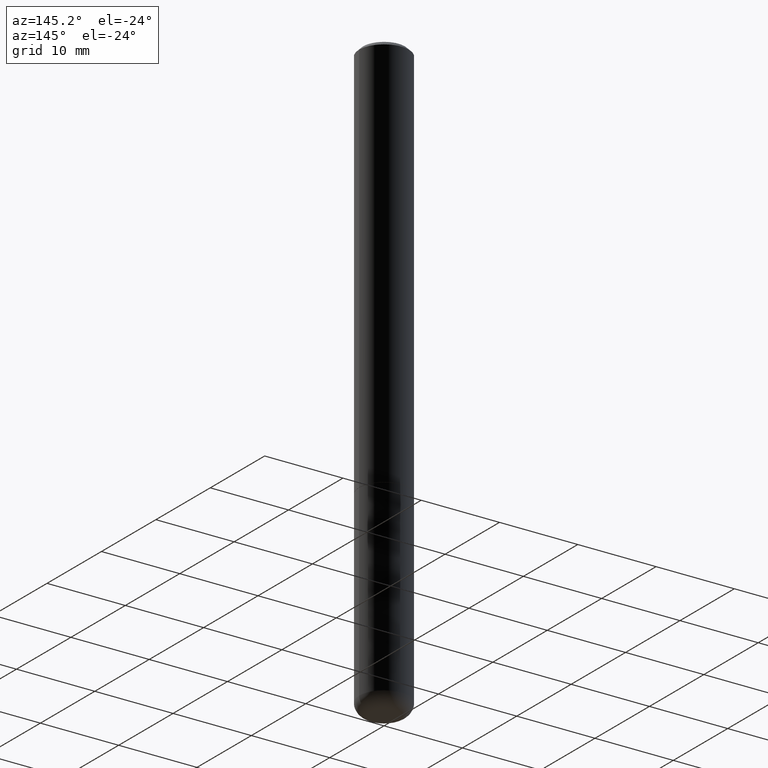
[diagram: clean part render]
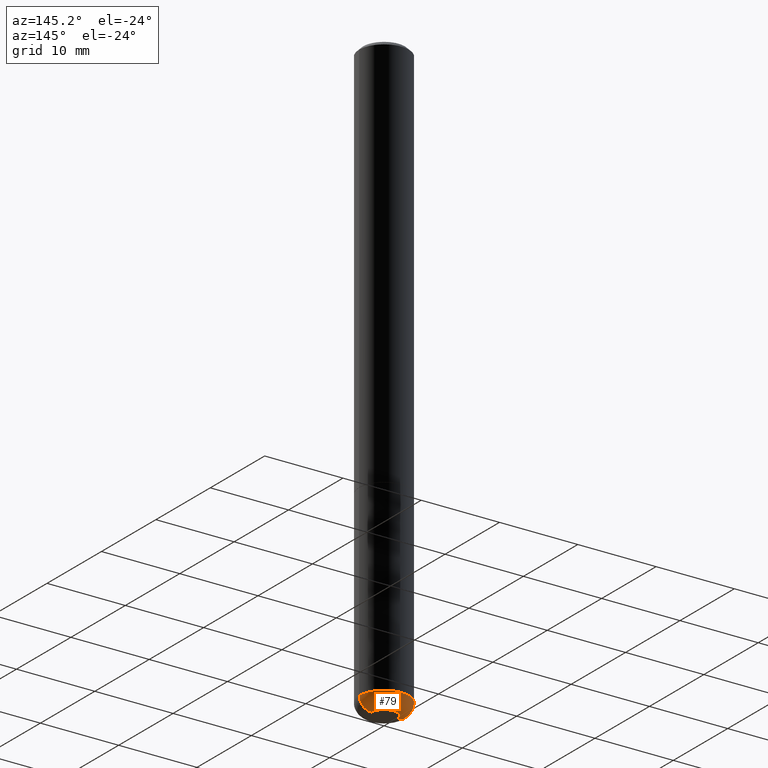
[diagram: same view with one face highlighted and labeled with its STEP entity id]
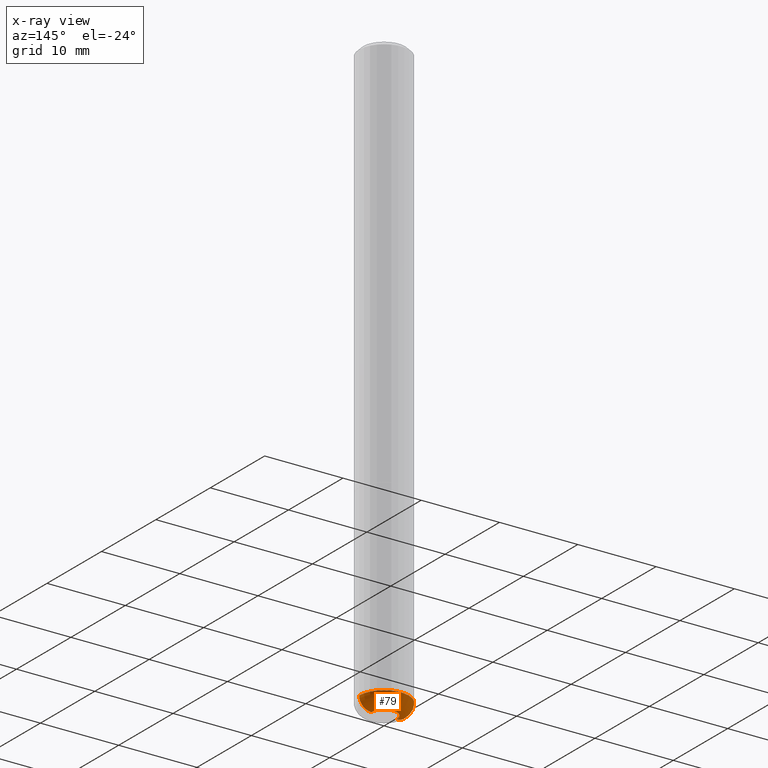
[diagram: x-ray of the same camera — body ghosted, the highlighted face saturated]
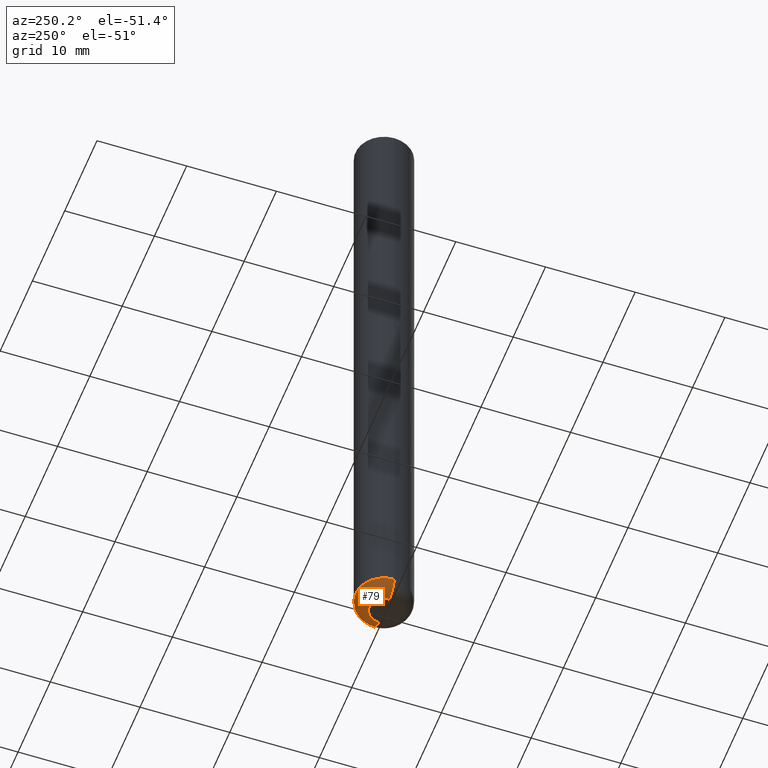
[diagram: same view with one face highlighted and labeled with its STEP entity id]
A machine part, auxiliary view. The second image highlights one B-rep face of the part: STEP entity #79.
The next image is the same camera in x-ray: the body ghosted, the highlighted face saturated — about 0% of this face is hidden behind the body in this view.
A second angle (auxiliary view) of the same face is appended — the face is thin or edge-on in the first view.
In plain terms, the highlighted toroidal blend (fillet) surface has major radius 1.651 mm and minor (blend) radius 1.524 mm.
Its self-contained STEP definition (entity closure, byte-faithful):
#1 = EDGE_CURVE ( 'NONE', #463, #370, #432, .T. ) ;
#16 = CARTESIAN_POINT ( 'NONE',  ( -0.06447640787009813190, -9.696548138661385576E-15, -2.999999999999999556 ) ) ;
#17 = ORIENTED_EDGE ( 'NONE', *, *, #335, .T. ) ;
#32 = EDGE_CURVE ( 'NONE', #282, #408, #467, .T. ) ;
#35 = CARTESIAN_POINT ( 'NONE',  ( 0.1250000000000000278, -1.113783344760428224E-14, -2.940002284616149097 ) ) ;
#37 = AXIS2_PLACEMENT_3D ( 'NONE', #352, #200, #389 ) ;
#54 = DIRECTION ( 'NONE',  ( 1.000000000000000000, -6.982962677686271444E-15, 0.000000000000000000 ) ) ;
#55 = EDGE_CURVE ( 'NONE', #370, #408, #443, .T. ) ;
#69 = AXIS2_PLACEMENT_3D ( 'NONE', #157, #316, #197 ) ;
#76 = CARTESIAN_POINT ( 'NONE',  ( 0.06447640787009811802, -1.092468036627760736E-14, -2.999999999999999556 ) ) ;
#79 = ADVANCED_FACE ( 'NONE', ( #430 ), #395, .T. ) ;
#86 = DIRECTION ( 'NONE',  ( -6.982962677686266711E-15, -1.000000000000000000, 3.491481338843145583E-15 ) ) ;
#98 = ORIENTED_EDGE ( 'NONE', *, *, #32, .T. ) ;
#100 = EDGE_LOOP ( 'NONE', ( #17, #98, #410, #353 ) ) ;
#122 = AXIS2_PLACEMENT_3D ( 'NONE', #425, #238, #392 ) ;
#157 = CARTESIAN_POINT ( 'NONE',  ( 7.189683877141828880E-29, -1.026496311289350047E-14, -2.940002284616149097 ) ) ;
#197 = DIRECTION ( 'NONE',  ( 1.000000000000000000, -6.982962677686267499E-15, 4.883557194083112901E-29 ) ) ;
#200 = DIRECTION ( 'NONE',  ( 7.105427357601001859E-15, 1.000000000000000000, -3.491481338843145583E-15 ) ) ;
#222 = CARTESIAN_POINT ( 'NONE',  ( -0.1250000000000000278, -7.735784475589770982E-15, -2.940002284616149097 ) ) ;
#238 = DIRECTION ( 'NONE',  ( -2.445468806185136597E-29, 3.491481338843145583E-15, 1.000000000000000000 ) ) ;
#282 = VERTEX_POINT ( 'NONE', #16 ) ;
#312 = CARTESIAN_POINT ( 'NONE',  ( 0.06500000000000022427, -1.071885568694310876E-14, -2.940002284616149097 ) ) ;
#316 = DIRECTION ( 'NONE',  ( -2.445468806185136597E-29, 3.491481338843145583E-15, 1.000000000000000000 ) ) ;
#335 = EDGE_CURVE ( 'NONE', #463, #282, #482, .T. ) ;
#352 = CARTESIAN_POINT ( 'NONE',  ( -0.06500000000000022427, -9.803110334649432577E-15, -2.940002284616149097 ) ) ;
#353 = ORIENTED_EDGE ( 'NONE', *, *, #1, .F. ) ;
#370 = VERTEX_POINT ( 'NONE', #35 ) ;
#389 = DIRECTION ( 'NONE',  ( -1.000000000000000000, 7.105427357600993970E-15, 0.000000000000000000 ) ) ;
#392 = DIRECTION ( 'NONE',  ( 1.000000000000000000, -6.982962677686261189E-15, 0.000000000000000000 ) ) ;
#395 = TOROIDAL_SURFACE ( 'NONE', #69, 0.06500000000000022427, 0.06000000000000024758 ) ;
#401 = AXIS2_PLACEMENT_3D ( 'NONE', #312, #86, #54 ) ;
#408 = VERTEX_POINT ( 'NONE', #222 ) ;
#409 = DIRECTION ( 'NONE',  ( 1.000000000000000000, -6.982962677686261189E-15, 0.000000000000000000 ) ) ;
#410 = ORIENTED_EDGE ( 'NONE', *, *, #55, .F. ) ;
#415 = DIRECTION ( 'NONE',  ( -2.445468806185136597E-29, 3.491481338843145583E-15, 1.000000000000000000 ) ) ;
#425 = CARTESIAN_POINT ( 'NONE',  ( 7.189683877141828880E-29, -1.026496311289350047E-14, -2.940002284616149097 ) ) ;
#430 = FACE_OUTER_BOUND ( 'NONE', #100, .T. ) ;
#432 = CIRCLE ( 'NONE', #401, 0.06000000000000024758 ) ;
#443 = CIRCLE ( 'NONE', #122, 0.1250000000000000278 ) ;
#463 = VERTEX_POINT ( 'NONE', #76 ) ;
#467 = CIRCLE ( 'NONE', #37, 0.06000000000000024758 ) ;
#482 = CIRCLE ( 'NONE', #490, 0.06447640787009811802 ) ;
#486 = CARTESIAN_POINT ( 'NONE',  ( 7.336406418555408669E-29, -1.047444401652943478E-14, -2.999999999999999556 ) ) ;
#490 = AXIS2_PLACEMENT_3D ( 'NONE', #486, #415, #409 ) ;